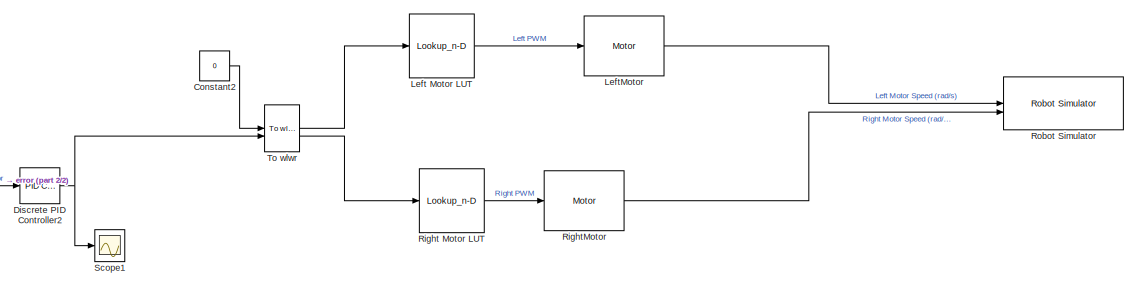
[diagram: root canvas - part 1/2, right side, full height]
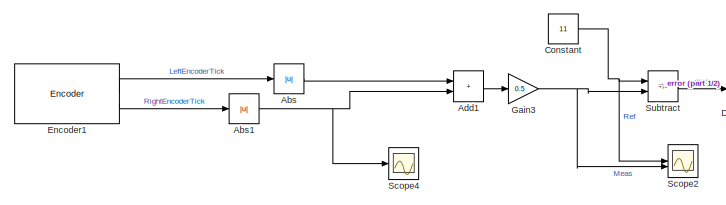
[diagram: root canvas - part 2/2, middle left region]
MODEL slx_5770693996ff
KIND model
CONFIG AbsTol = auto
CONFIG EnableMultiTasking = off
CONFIG FixedStep = 0.01
CONFIG MaxStep = auto
CONFIG MinStep = auto
CONFIG RelTol = 1e-3
CONFIG SampleTimeConstraint = Unconstrained
CONFIG SolverName = FixedStepDiscrete
CONFIG StartTime = 0.0
CONFIG StopTime = 15
BLOCK [Abs] Abs
  SaturateOnIntegerOverflow = off
BLOCK [Abs] Abs1
  SaturateOnIntegerOverflow = off
BLOCK [Sum] Add1
  IconShape = rectangular
BLOCK [Constant] Constant
  Value = 11
BLOCK [Constant] Constant2
  Value = 0
BLOCK [Reference] Discrete PID Controller2  REF=slpidlib/PID Controller
  LibrarySourceBlock = simulink/Discrete/Discrete PID Controller
  SourceBlock = slpidlib/PID Controller
  SourceType = PID 1dof
BLOCK [Reference] Encoder1  REF=mobileRoboticsTrainingLib/Encoder
  SourceBlock = mobileRoboticsTrainingLib/Encoder
  SourceProductName = Mobile Robotics Training Library
  SourceType = Encoder Simulation
BLOCK [Gain] Gain3
  Gain = 0.5
BLOCK [Lookup_n-D] Left Motor LUT
  BreakpointsForDimension1 = WheelSpeed
  ExtrapMethod = Clip
  InputPortMap = u0
  InternalRulePriority = Speed
  InterpMethod = Nearest
  NumberOfTableDimensions = 1
  RndMeth = Simplest
  Table = InputPWM
BLOCK [Reference] LeftMotor  REF=mobileRoboticsTrainingLib/Motor
  SourceBlock = mobileRoboticsTrainingLib/Motor
  SourceProductName = Mobile Robotics Training Library
  SourceType = Motor Model
BLOCK [Lookup_n-D] Right Motor LUT
  BreakpointsForDimension1 = WheelSpeed
  ExtrapMethod = Clip
  InputPortMap = u0
  InternalRulePriority = Speed
  InterpMethod = Nearest
  NumberOfTableDimensions = 1
  RndMeth = Simplest
  Table = InputPWM
BLOCK [Reference] RightMotor  REF=mobileRoboticsTrainingLib/Motor
  SourceBlock = mobileRoboticsTrainingLib/Motor
  SourceProductName = Mobile Robotics Training Library
  SourceType = Motor Model
BLOCK [Reference] Robot Simulator  REF=mobileRoboticsTrainingLib/Robot Simulator
  Priority = 99
  SourceBlock = mobileRoboticsTrainingLib/Robot Simulator
  SourceProductName = Mobile Robotics Training Library
  SourceType = Robot Simulator
BLOCK [Scope] Scope1
  Floating = off
  NumInputPorts = 1
  ScopeSpecificationString = Simulink.scopes.TimeScopeBlockCfg('CurrentConfiguration', extmgr.ConfigurationSet(extmgr.Configuration('Core','General UI',true),extmgr.Configuration('Core','Source UI',true),extmgr.Configuration('Sources','WiredSimulink',true,'DataLoggingVariableName','ScopeData2'),extmgr.Configuration('Visuals','Time Domain',true,'SerializedDisplays',{struct('MinYLimReal','-13.38885','MaxYLimReal','2.41801','YLa...<+1433ch>
BLOCK [Scope] Scope2
  Floating = off
  NumInputPorts = 2
  ScopeSpecificationString = Simulink.scopes.TimeScopeBlockCfg('CurrentConfiguration', extmgr.ConfigurationSet(extmgr.Configuration('Core','General UI',true),extmgr.Configuration('Core','Source UI',true),extmgr.Configuration('Sources','WiredSimulink',true,'DataLoggingVariableName','ScopeData1'),extmgr.Configuration('Visuals','Time Domain',true,'SerializedDisplays',{struct('MinYLimReal','-1.4375','MaxYLimReal','12.9375','YLabe...<+1395ch>
BLOCK [Scope] Scope4
  Floating = off
  NumInputPorts = 1
  ScopeSpecificationString = Simulink.scopes.TimeScopeBlockCfg('CurrentConfiguration', extmgr.ConfigurationSet(extmgr.Configuration('Core','General UI',true),extmgr.Configuration('Core','Source UI',true),extmgr.Configuration('Sources','WiredSimulink',true,'DataLoggingVariableName','ScopeData2'),extmgr.Configuration('Visuals','Time Domain',true,'SerializedDisplays',{struct('MinYLimReal','-149.00000','MaxYLimReal','2.41801','YL...<+1417ch>
BLOCK [Sum] Subtract
  IconShape = rectangular
  Inputs = +-
BLOCK [Reference] To wlwr  REF=mobileRoboticsTrainingLib/To wlwr
  SourceBlock = mobileRoboticsTrainingLib/To wlwr
  SourceProductName = Mobile Robotics Training Library
  SourceType = To wlwr
NET Abs1:1 -> Add1:2, Scope4:1
LINE Abs:1 -> Add1:1
LINE Add1:1 -> Gain3:1
LINE Constant2:1 -> To wlwr:1
NET Constant:1 -> Scope2:1, Subtract:1
NET Discrete PID Controller2:1 -> Scope1:1, To wlwr:2
LINE Encoder1:1 -> Abs:1
LINE Encoder1:2 -> Abs1:1
NET Gain3:1 -> Scope2:2, Subtract:2
LINE Left Motor LUT:1 -> LeftMotor:1
LINE LeftMotor:1 -> Robot Simulator:1
LINE Right Motor LUT:1 -> RightMotor:1
LINE RightMotor:1 -> Robot Simulator:2
LINE Subtract:1 -> Discrete PID Controller2:1
LINE To wlwr:1 -> Left Motor LUT:1
LINE To wlwr:2 -> Right Motor LUT:1
note: NET lines group one-source signal fan-out (src -> all destinations, sorted); 1:1 wires keep LINE
